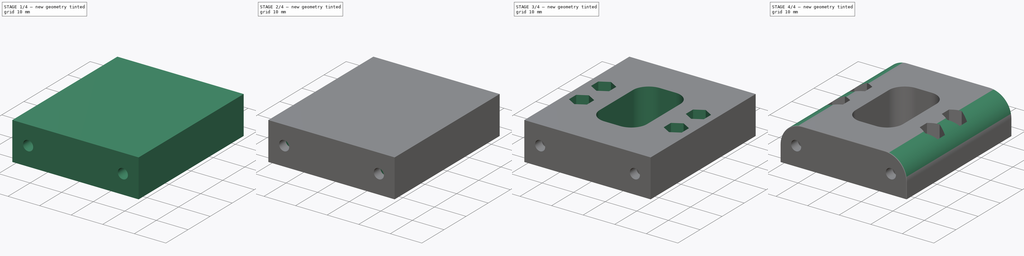
[diagram: build sequence overview — one tinted view per stage of 4, left to right]
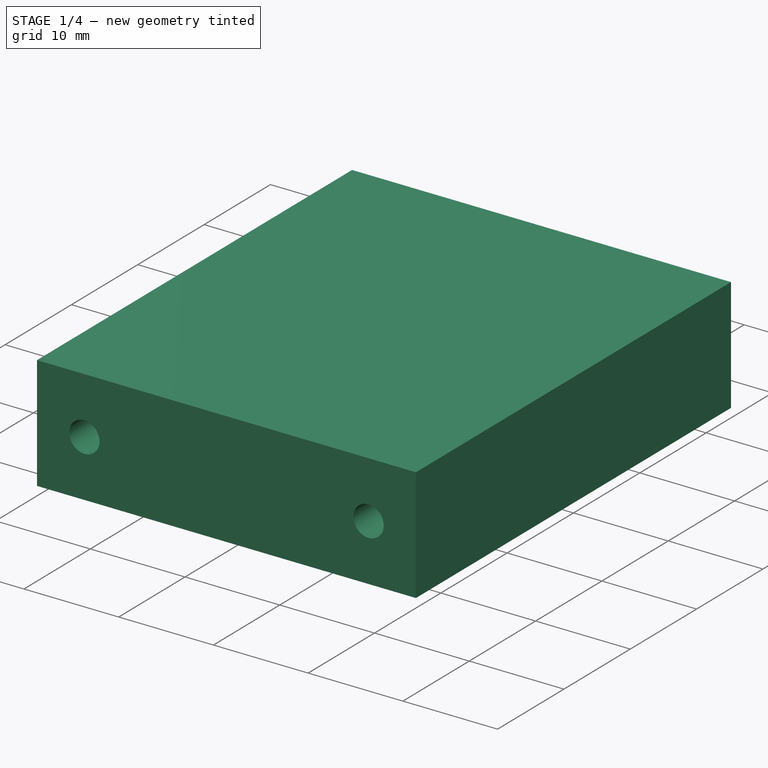
[diagram: stage 1 of 4 — iso view after this stage's code; geometry added in this stage tinted green]
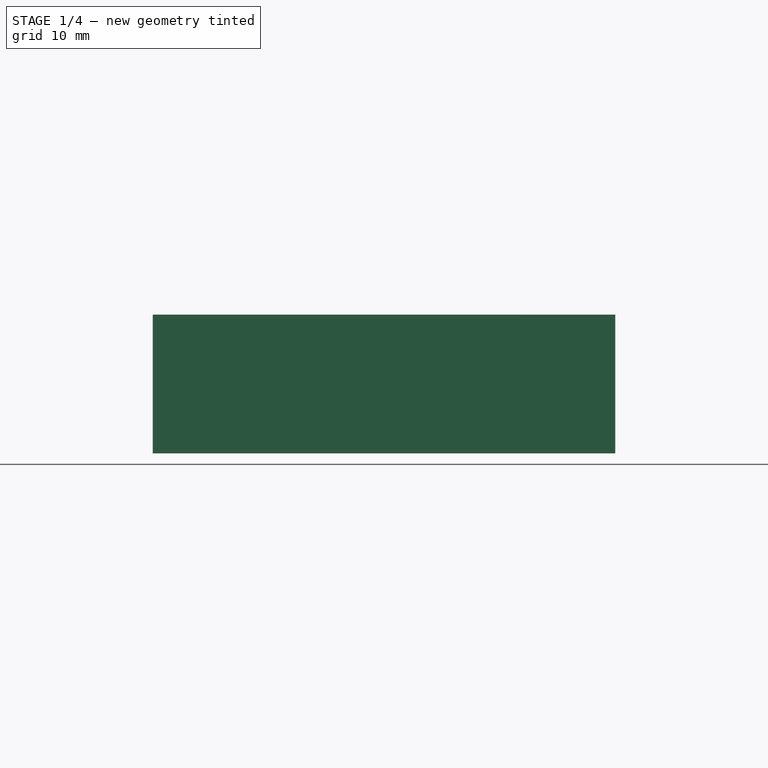
[diagram: stage 1 of 4 — front view after this stage's code; geometry added in this stage tinted green]
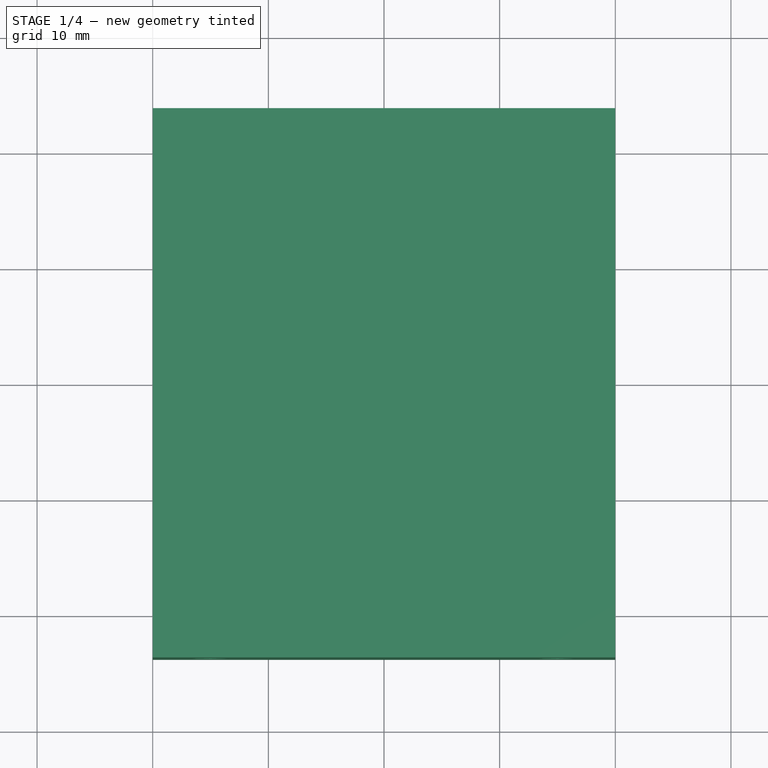
[diagram: stage 1 of 4 — top view after this stage's code; geometry added in this stage tinted green]
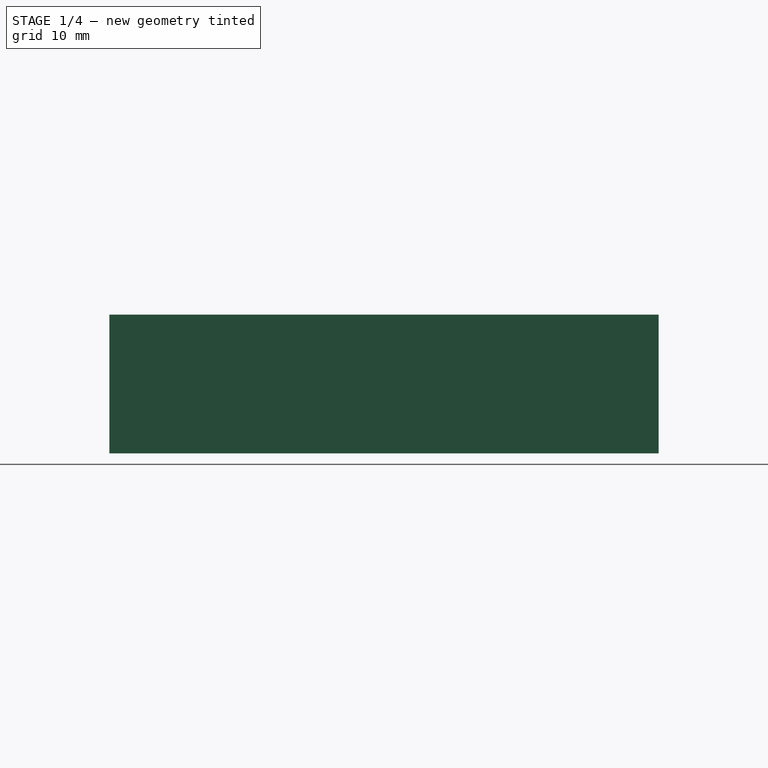
[diagram: stage 1 of 4 — right view after this stage's code; geometry added in this stage tinted green]
FCSTD DOCUMENT  (FreeCAD 0.18R4 (GitTag))
Label: Top_Shoulder
License: CreativeCommons Attribution-NonCommercial
LicenseURL: http://creativecommons.org/licenses/by-nc/4.0/
objects: Sketcher::SketchObject×8, PartDesign::Pocket×7, PartDesign::Pad×1, PartDesign::Fillet×1, PartDesign::Body×1
note: 26 computed .brp shape members not serialized (recipe doc carries the construction recipe); baked Part::Feature solids carry a one-line shape summary decoded from their .brp

FEATURE [Sketcher::SketchObject] Sketch
  MapMode = 5
  Support = -> [XY_Plane]
  sketch-geometry (4):
    g0: LineSegment StartX=-20 StartY=23.75 StartZ=0 EndX=20 EndY=23.75 EndZ=0
    g1: LineSegment StartX=20 StartY=23.75 StartZ=0 EndX=20 EndY=-23.75 EndZ=0
    g2: LineSegment StartX=20 StartY=-23.75 StartZ=0 EndX=-20 EndY=-23.75 EndZ=0
    g3: LineSegment StartX=-20 StartY=-23.75 StartZ=0 EndX=-20 EndY=23.75 EndZ=0
  constraints (10):
    c: Coincident(g0,g1)
    c: Coincident(g1,g2)
    c: Coincident(g2,g3)
    c: Coincident(g3,g0)
    c: Horizontal(g2)
    c: Vertical(g1)
    c: Symmetric(g0,g0,g-2)
    c: Symmetric(g0,g2,g-1)
    c: DistanceX(g0,g0) = 40
    c: DistanceY(g3,g3) = 47.5
FEATURE [PartDesign::Pad] Pad  label="Baseplate"
  Length = 12
  Length2 = 100
  Profile = -> Sketch
  Type = 0
FEATURE [Sketcher::SketchObject] Sketch001
  MapMode = 5
  Placement = pos=(0,-23.75,0) rot=(1,0,0;1.5708rad)
  Support = -> [Pad]
  sketch-geometry (2):
    g0: Circle CenterX=-15 CenterY=6 CenterZ=0 NormalX=0 NormalY=0 NormalZ=1 AngleXU=0 Radius=1.6
    g1: Circle CenterX=15 CenterY=6 CenterZ=0 NormalX=0 NormalY=0 NormalZ=1 AngleXU=0 Radius=1.6
  constraints (5):
    c: Symmetric(g0,g1,g-2)
    c: Equal(g0,g1)
    c: Radius(g1) = 1.6
    c: DistanceY(g-1,g0) = 6
    c: DistanceX(g0,g1) = 30
FEATURE [PartDesign::Pocket] Pocket  label="Screwholes Front"
  BaseFeature = -> Pad
  Length = 8
  Length2 = 100
  Profile = -> Sketch001
  Type = 0
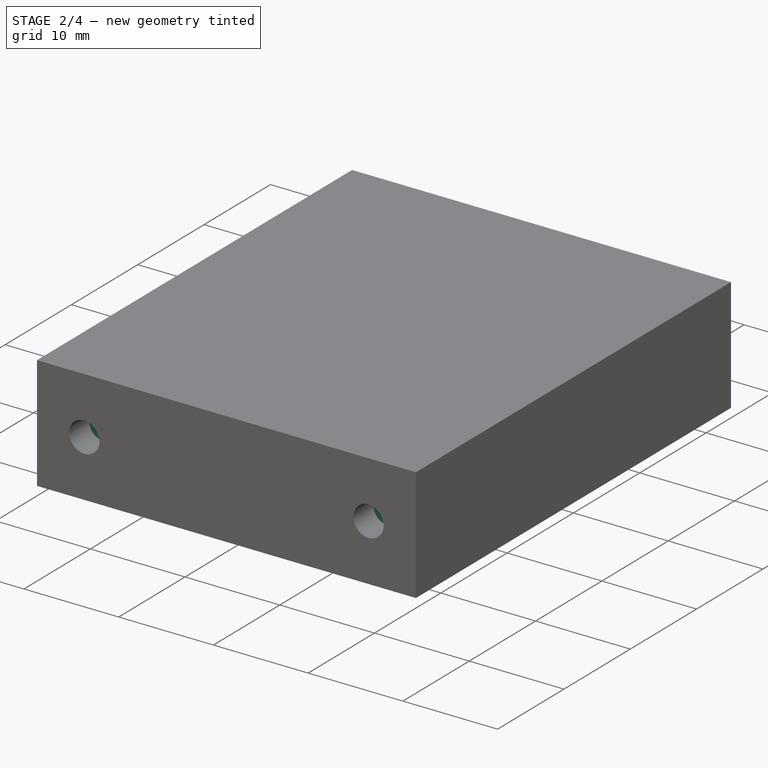
[diagram: stage 2 of 4 — iso view after this stage's code; geometry added in this stage tinted green]
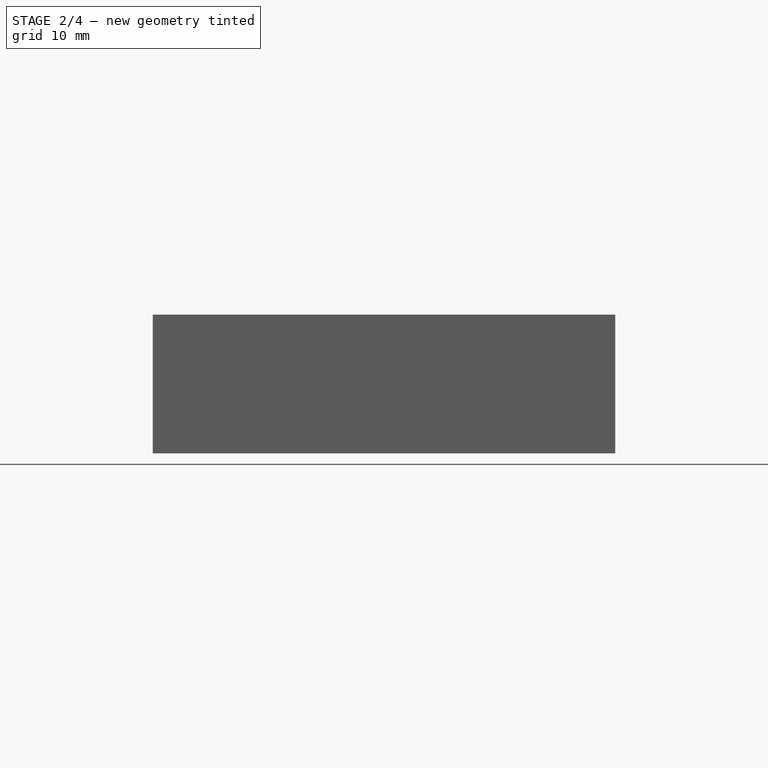
[diagram: stage 2 of 4 — front view after this stage's code; geometry added in this stage tinted green]
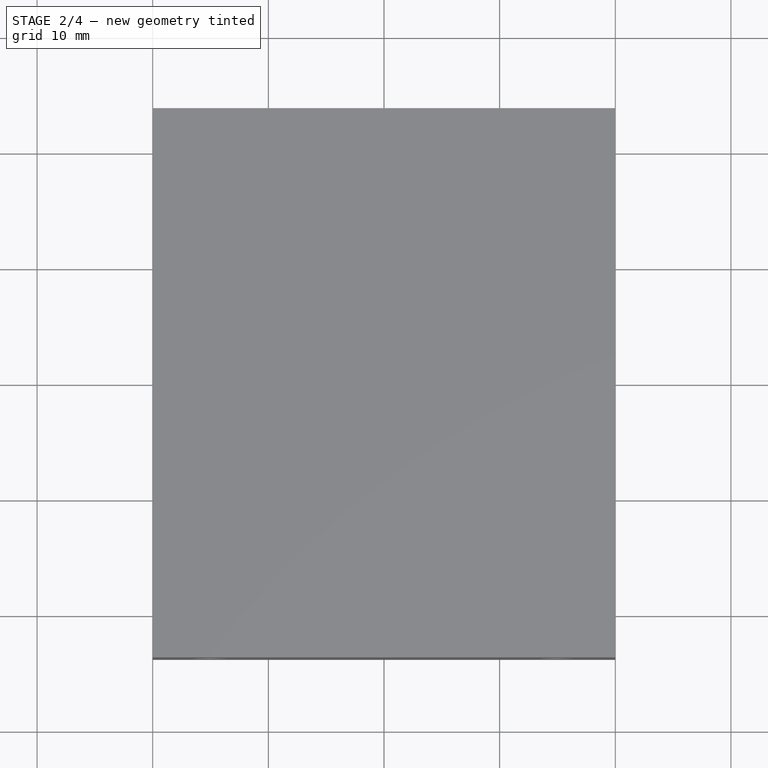
[diagram: stage 2 of 4 — top view after this stage's code; geometry added in this stage tinted green]
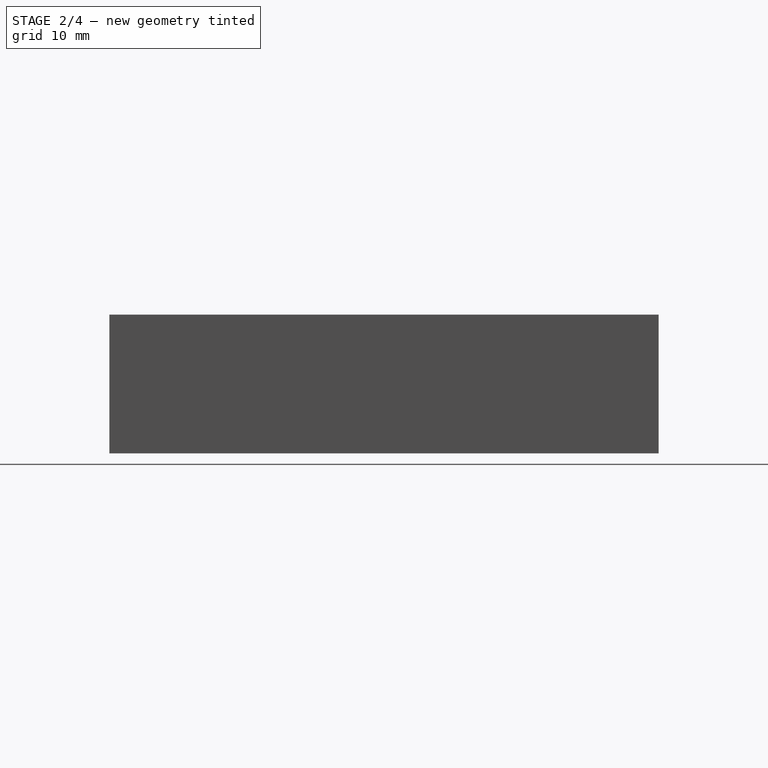
[diagram: stage 2 of 4 — right view after this stage's code; geometry added in this stage tinted green]
FEATURE [Sketcher::SketchObject] Sketch002
  MapMode = 5
  Placement = pos=(0,23.75,0) rot=(0,0.707107,0.707107;3.14159rad)
  Support = -> [Pocket]
  sketch-geometry (2):
    g0: Circle CenterX=-15 CenterY=6 CenterZ=0 NormalX=0 NormalY=0 NormalZ=1 AngleXU=0 Radius=1.6
    g1: Circle CenterX=15 CenterY=6 CenterZ=0 NormalX=0 NormalY=0 NormalZ=1 AngleXU=0 Radius=1.6
  constraints (5):
    c: Symmetric(g0,g1,g-2)
    c: Equal(g0,g1)
    c: Radius(g1) = 1.6
    c: DistanceY(g-1,g0) = 6
    c: DistanceX(g0,g1) = 30
FEATURE [PartDesign::Pocket] Pocket001  label="Screwholes Rear"
  BaseFeature = -> Pocket
  Length = 8
  Length2 = 100
  Profile = -> Sketch002
  Type = 0
FEATURE [Sketcher::SketchObject] Sketch003
  AttachmentOffset = pos=(0,0,-2.5) rot=(0,0,1;0rad)
  MapMode = 5
  Placement = pos=(0,0,9.5) rot=(0,0,1;0rad)
  Support = -> [Pocket001]
  sketch-geometry (16):
    g0: LineSegment StartX=-17.9 StartY=20.75 StartZ=0 EndX=-12.1 EndY=20.75 EndZ=0
    g1: LineSegment StartX=-12.1 StartY=20.75 StartZ=0 EndX=-12.1 EndY=17.75 EndZ=0
    g2: LineSegment StartX=-12.1 StartY=17.75 StartZ=0 EndX=-17.9 EndY=17.75 EndZ=0
    g3: LineSegment StartX=-17.9 StartY=17.75 StartZ=0 EndX=-17.9 EndY=20.75 EndZ=0
    g4: LineSegment StartX=12.1 StartY=20.75 StartZ=0 EndX=17.9 EndY=20.75 EndZ=0
    g5: LineSegment StartX=17.9 StartY=20.75 StartZ=0 EndX=17.9 EndY=17.75 EndZ=0
    g6: LineSegment StartX=17.9 StartY=17.75 StartZ=0 EndX=12.1 EndY=17.75 EndZ=0
    g7: LineSegment StartX=12.1 StartY=17.75 StartZ=0 EndX=12.1 EndY=20.75 EndZ=0
    g8: LineSegment StartX=-17.9 StartY=-17.75 StartZ=0 EndX=-12.1 EndY=-17.75 EndZ=0
    g9: LineSegment StartX=-12.1 StartY=-17.75 StartZ=0 EndX=-12.1 EndY=-20.75 EndZ=0
    g10: LineSegment StartX=-12.1 StartY=-20.75 StartZ=0 EndX=-17.9 EndY=-20.75 EndZ=0
    g11: LineSegment StartX=-17.9 StartY=-20.75 StartZ=0 EndX=-17.9 EndY=-17.75 EndZ=0
    g12: LineSegment StartX=12.1 StartY=-17.75 StartZ=0 EndX=17.9 EndY=-17.75 EndZ=0
    g13: LineSegment StartX=17.9 StartY=-17.75 StartZ=0 EndX=17.9 EndY=-20.75 EndZ=0
    g14: LineSegment StartX=17.9 StartY=-20.75 StartZ=0 EndX=12.1 EndY=-20.75 EndZ=0
    g15: LineSegment StartX=12.1 StartY=-20.75 StartZ=0 EndX=12.1 EndY=-17.75 EndZ=0
  constraints (45):
    c: Coincident(g0,g1)
    c: Coincident(g1,g2)
    c: Coincident(g2,g3)
    c: Coincident(g3,g0)
    c: Horizontal(g0)
    c: Horizontal(g2)
    c: Vertical(g1)
    c: Vertical(g3)
    c: Coincident(g4,g5)
    c: Coincident(g5,g6)
    c: Coincident(g6,g7)
    c: Coincident(g7,g4)
    c: Horizontal(g4)
    c: Horizontal(g6)
    c: Vertical(g5)
    c: Vertical(g7)
    c: Coincident(g8,g9)
    c: Coincident(g9,g10)
    c: Coincident(g10,g11)
    c: Coincident(g11,g8)
    c: Horizontal(g8)
    c: Horizontal(g10)
    c: Vertical(g9)
    c: Vertical(g11)
    c: Coincident(g12,g13)
    c: Coincident(g13,g14)
    c: Coincident(g14,g15)
    c: Coincident(g15,g12)
    c: Horizontal(g12)
    c: Horizontal(g14)
    c: Vertical(g13)
    c: Vertical(g15)
    c: Equal(g11,g13)
    c: Equal(g13,g5)
    c: Equal(g5,g3)
    c: Equal(g0,g4)
    c: Equal(g4,g10)
    c: Equal(g10,g14)
    c: DistanceX(g0,g0) = 5.8
    c: Symmetric(g0,g4,g-2)
    c: Symmetric(g9,g14,g-2)
    c: Symmetric(g12,g5,g-1)
    c: DistanceY(g10,g-1) = 20.75
    c: DistanceY(g11,g11) = 3
    c: DistanceX(g0,g4) = 24.2
FEATURE [PartDesign::Pocket] Pocket002  label="Nutholes Front and Rear"
  BaseFeature = -> Pocket001
  Length = 12
  Length2 = 100
  Profile = -> Sketch003
  Type = 0
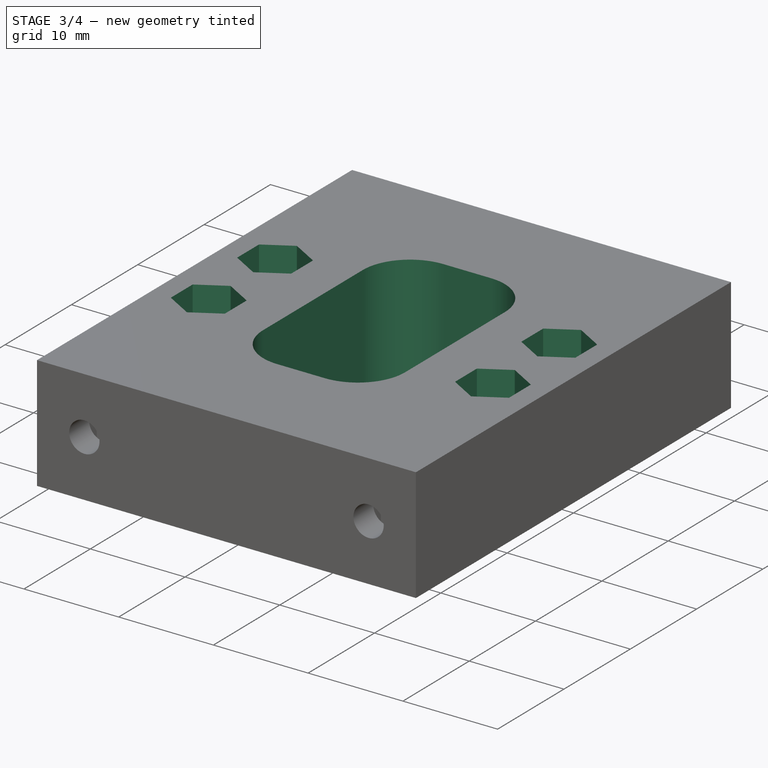
[diagram: stage 3 of 4 — iso view after this stage's code; geometry added in this stage tinted green]
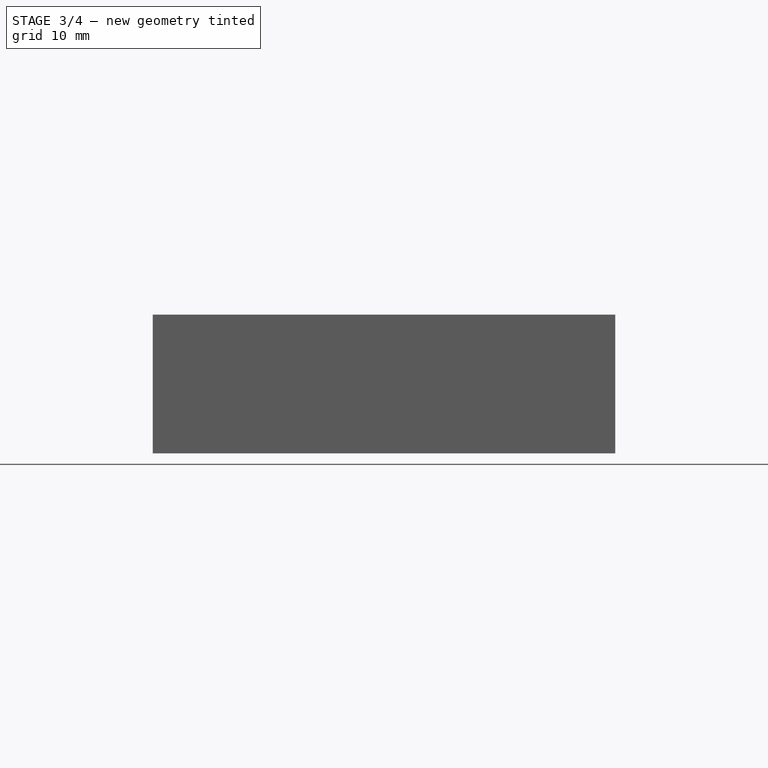
[diagram: stage 3 of 4 — front view after this stage's code; geometry added in this stage tinted green]
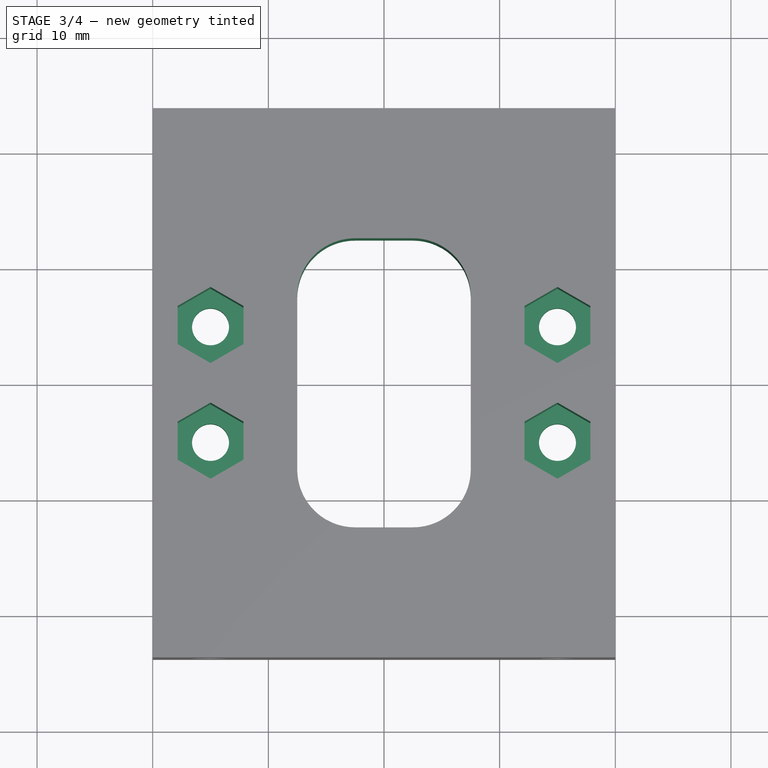
[diagram: stage 3 of 4 — top view after this stage's code; geometry added in this stage tinted green]
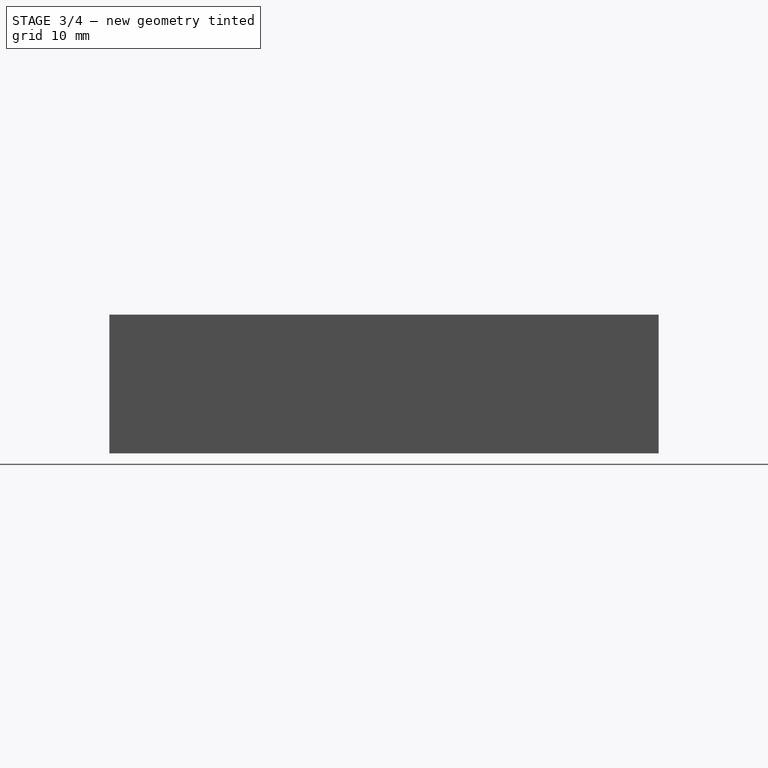
[diagram: stage 3 of 4 — right view after this stage's code; geometry added in this stage tinted green]
FEATURE [Sketcher::SketchObject] Sketch004
  MapMode = 5
  Placement = pos=(0,0,12) rot=(0,0,1;0rad)
  Support = -> [Pocket002]
  sketch-geometry (4):
    g0: Circle CenterX=-15 CenterY=5 CenterZ=0 NormalX=0 NormalY=0 NormalZ=1 AngleXU=0 Radius=1.6
    g1: Circle CenterX=15 CenterY=5 CenterZ=0 NormalX=0 NormalY=0 NormalZ=1 AngleXU=0 Radius=1.6
    g2: Circle CenterX=-15 CenterY=-5 CenterZ=0 NormalX=0 NormalY=0 NormalZ=1 AngleXU=0 Radius=1.6
    g3: Circle CenterX=15 CenterY=-5 CenterZ=0 NormalX=0 NormalY=0 NormalZ=1 AngleXU=0 Radius=1.6
  constraints (9):
    c: Equal(g0,g1)
    c: Equal(g1,g2)
    c: Equal(g2,g3)
    c: Symmetric(g3,g1,g-1)
    c: Symmetric(g0,g1,g-2)
    c: Symmetric(g2,g3,g-2)
    c: Radius(g1) = 1.6
    c: DistanceX(g0,g1) = 30
    c: DistanceY(g2,g0) = 10
FEATURE [PartDesign::Pocket] Pocket003  label="Screwholes Covers"
  BaseFeature = -> Pocket002
  Length = 12
  Length2 = 100
  Profile = -> Sketch004
  Type = 0
FEATURE [Sketcher::SketchObject] Sketch005
  ExternalGeometry = -> [Pocket003]
  MapMode = 5
  Placement = pos=(0,0,12) rot=(0,0,1;0rad)
  Support = -> [Pocket003]
  sketch-geometry (32):
    g0: LineSegment StartX=-15 StartY=8.2909 StartZ=0 EndX=-17.85 EndY=6.64545 EndZ=0
    g1: LineSegment StartX=-17.85 StartY=6.64545 StartZ=0 EndX=-17.85 EndY=3.35455 EndZ=0
    g2: LineSegment StartX=-17.85 StartY=3.35455 StartZ=0 EndX=-15 EndY=1.7091 EndZ=0
    g3: LineSegment StartX=-15 StartY=1.7091 StartZ=0 EndX=-12.15 EndY=3.35455 EndZ=0
    g4: LineSegment StartX=-12.15 StartY=3.35455 StartZ=0 EndX=-12.15 EndY=6.64545 EndZ=0
    g5: LineSegment StartX=-12.15 StartY=6.64545 StartZ=0 EndX=-15 EndY=8.2909 EndZ=0
    g6: Circle [constr] CenterX=-15 CenterY=5 CenterZ=0 NormalX=0 NormalY=0 NormalZ=1 AngleXU=0 Radius=3.2909
    g7: LineSegment StartX=15 StartY=8.2909 StartZ=0 EndX=12.15 EndY=6.64545 EndZ=0
    g8: LineSegment StartX=12.15 StartY=6.64545 StartZ=0 EndX=12.15 EndY=3.35455 EndZ=0
    g9: LineSegment StartX=12.15 StartY=3.35455 StartZ=0 EndX=15 EndY=1.7091 EndZ=0
    g10: LineSegment StartX=15 StartY=1.7091 StartZ=0 EndX=17.85 EndY=3.35455 EndZ=0
    g11: LineSegment StartX=17.85 StartY=3.35455 StartZ=0 EndX=17.85 EndY=6.64545 EndZ=0
    g12: LineSegment StartX=17.85 StartY=6.64545 StartZ=0 EndX=15 EndY=8.2909 EndZ=0
    g13: Circle [constr] CenterX=15 CenterY=5 CenterZ=0 NormalX=0 NormalY=0 NormalZ=1 AngleXU=0 Radius=3.2909
    g14: LineSegment StartX=-15 StartY=-1.7091 StartZ=0 EndX=-17.85 EndY=-3.35455 EndZ=0
    g15: LineSegment StartX=-17.85 StartY=-3.35455 StartZ=0 EndX=-17.85 EndY=-6.64545 EndZ=0
    g16: LineSegment StartX=-17.85 StartY=-6.64545 StartZ=0 EndX=-15 EndY=-8.2909 EndZ=0
    g17: LineSegment StartX=-15 StartY=-8.2909 StartZ=0 EndX=-12.15 EndY=-6.64545 EndZ=0
    g18: LineSegment StartX=-12.15 StartY=-6.64545 StartZ=0 EndX=-12.15 EndY=-3.35455 EndZ=0
    g19: LineSegment StartX=-12.15 StartY=-3.35455 StartZ=0 EndX=-15 EndY=-1.7091 EndZ=0
    g20: Circle [constr] CenterX=-15 CenterY=-5 CenterZ=0 NormalX=0 NormalY=0 NormalZ=1 AngleXU=0 Radius=3.2909
    g21: LineSegment StartX=15 StartY=-1.7091 StartZ=0 EndX=12.15 EndY=-3.35455 EndZ=0
    g22: LineSegment StartX=12.15 StartY=-3.35455 StartZ=0 EndX=12.15 EndY=-6.64545 EndZ=0
    g23: LineSegment StartX=12.15 StartY=-6.64545 StartZ=0 EndX=15 EndY=-8.2909 EndZ=0
    g24: LineSegment StartX=15 StartY=-8.2909 StartZ=0 EndX=17.85 EndY=-6.64545 EndZ=0
    g25: LineSegment StartX=17.85 StartY=-6.64545 StartZ=0 EndX=17.85 EndY=-3.35455 EndZ=0
    g26: LineSegment StartX=17.85 StartY=-3.35455 StartZ=0 EndX=15 EndY=-1.7091 EndZ=0
    g27: Circle [constr] CenterX=15 CenterY=-5 CenterZ=0 NormalX=0 NormalY=0 NormalZ=1 AngleXU=0 Radius=3.2909
    g28: LineSegment [constr] StartX=-15 StartY=5 StartZ=0 EndX=15 EndY=5 EndZ=0
    g29: LineSegment [constr] StartX=15 StartY=5 StartZ=0 EndX=15 EndY=-5 EndZ=0
    g30: LineSegment [constr] StartX=15 StartY=-5 StartZ=0 EndX=-15 EndY=-5 EndZ=0
    g31: LineSegment [constr] StartX=-15 StartY=-5 StartZ=0 EndX=-15 EndY=5 EndZ=0
  constraints (74):
    c: Coincident(g0,g1)
    c: Coincident(g1,g2)
    c: Coincident(g2,g3)
    c: Coincident(g3,g4)
    c: Coincident(g4,g5)
    c: Coincident(g5,g0)
    c: Equal(g0, g1-g5) x5
    c: PointOnObject(g0,g6)
    c: PointOnObject(g1,g6)
    c: PointOnObject(g2,g6)
    c: PointOnObject(g3,g6)
    c: PointOnObject(g4,g6)
    c: PointOnObject(g5,g6)
    c: Coincident(g7,g8)
    c: Coincident(g8,g9)
    c: Coincident(g9,g10)
    c: Coincident(g10,g11)
    c: Coincident(g11,g12)
    c: Coincident(g12,g7)
    c: Equal(g7, g8-g12) x5
    c: PointOnObject(g7,g13)
    c: PointOnObject(g8,g13)
    c: PointOnObject(g9,g13)
    c: PointOnObject(g10,g13)
    c: PointOnObject(g11,g13)
    c: PointOnObject(g12,g13)
    c: Coincident(g14,g15)
    c: Coincident(g15,g16)
    c: Coincident(g16,g17)
    c: Coincident(g17,g18)
    c: Coincident(g18,g19)
    c: Coincident(g19,g14)
    c: Equal(g14, g15-g19) x5
    c: PointOnObject(g14,g20)
    c: PointOnObject(g15,g20)
    c: PointOnObject(g16,g20)
    c: PointOnObject(g17,g20)
    c: PointOnObject(g18,g20)
    c: PointOnObject(g19,g20)
    c: Coincident(g21,g22)
    c: Coincident(g22,g23)
    c: Coincident(g23,g24)
    c: Coincident(g24,g25)
    c: Coincident(g25,g26)
    c: Coincident(g26,g21)
    c: Equal(g21, g22-g26) x5
    c: PointOnObject(g21,g27)
    c: PointOnObject(g22,g27)
    c: PointOnObject(g23,g27)
    c: PointOnObject(g24,g27)
    c: PointOnObject(g25,g27)
    c: PointOnObject(g26,g27)
    c: Equal(g6,g20)
    c: Equal(g20,g13)
    c: Equal(g13,g27)
    c: Vertical(g1)
    c: Vertical(g15)
    c: Vertical(g8)
    c: Vertical(g22)
    c: Distance(g4,g0) = 5.7
    c: Coincident(g28,g29)
    c: Coincident(g29,g30)
    c: Coincident(g30,g31)
    c: Coincident(g31,g28)
    c: Horizontal(g30)
    c: Vertical(g29)
    c: Coincident(g28,g6)
    c: Coincident(g29,g27)
    c: Coincident(g13,g28)
    c: Coincident(g20,g30)
    c: Symmetric(g6,g20,g-1)
    c: Symmetric(g6,g13,g-2)
    c: DistanceX(g28,g28) = 30
    c: DistanceY(g31,g31) = 10
FEATURE [PartDesign::Pocket] Pocket004  label="Nutholes Covers"
  BaseFeature = -> Pocket003
  Length = 9
  Length2 = 100
  Profile = -> Sketch005
  Type = 0
FEATURE [Sketcher::SketchObject] Sketch006
  MapMode = 5
  Placement = pos=(0,0,12) rot=(0,0,1;0rad)
  sketch-geometry (8):
    g0: LineSegment StartX=-2.5 StartY=12.5 StartZ=0 EndX=2.5 EndY=12.5 EndZ=0
    g1: LineSegment StartX=7.5 StartY=7.5 StartZ=0 EndX=7.5 EndY=-7.5 EndZ=0
    g2: LineSegment StartX=2.5 StartY=-12.5 StartZ=0 EndX=-2.5 EndY=-12.5 EndZ=0
    g3: LineSegment StartX=-7.5 StartY=-7.5 StartZ=0 EndX=-7.5 EndY=7.5 EndZ=0
    g4: ArcOfCircle CenterX=-2.5 CenterY=7.5 CenterZ=0 NormalX=0 NormalY=0 NormalZ=1 AngleXU=0 Radius=5 StartAngle=1.5708 EndAngle=3.14159
    g5: ArcOfCircle CenterX=2.5 CenterY=7.5 CenterZ=0 NormalX=0 NormalY=0 NormalZ=1 AngleXU=0 Radius=5 StartAngle=1e-16 EndAngle=1.5708
    g6: ArcOfCircle CenterX=2.5 CenterY=-7.5 CenterZ=0 NormalX=0 NormalY=0 NormalZ=1 AngleXU=0 Radius=5 StartAngle=4.71239 EndAngle=6.28319
    g7: ArcOfCircle CenterX=-2.5 CenterY=-7.5 CenterZ=0 NormalX=0 NormalY=0 NormalZ=1 AngleXU=0 Radius=5 StartAngle=3.14159 EndAngle=4.71239
  constraints (18):
    c: Horizontal(g2)
    c: Vertical(g3)
    c: Tangent(g3,g4) = 1.5708
    c: Tangent(g0,g4) = 1.5708
    c: Tangent(g0,g5) = 1.5708
    c: Tangent(g1,g5) = 1.5708
    c: Tangent(g1,g6) = 1.5708
    c: Tangent(g2,g6) = 1.5708
    c: Tangent(g2,g7) = 1.5708
    c: Tangent(g3,g7) = 1.5708
    c: Equal(g5,g6)
    c: Equal(g6,g4)
    c: Equal(g4,g7)
    c: Symmetric(g1,g3,g-2)
    c: Symmetric(g0,g2,g-1)
    c: DistanceY(g2,g0) = 25
    c: DistanceX(g3,g1) = 15
    c: Radius(g7) = 5
FEATURE [PartDesign::Pocket] Pocket005  label="Access Hole"
  BaseFeature = -> Pocket004
  Length = 12
  Length2 = 100
  Profile = -> Sketch006
  Type = 0
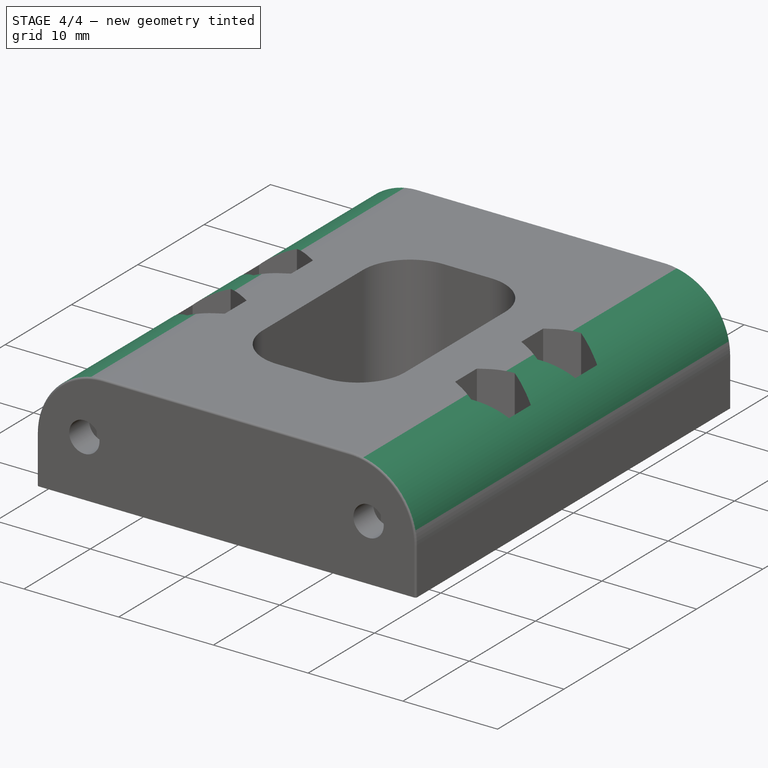
[diagram: stage 4 of 4 — iso view after this stage's code; geometry added in this stage tinted green]
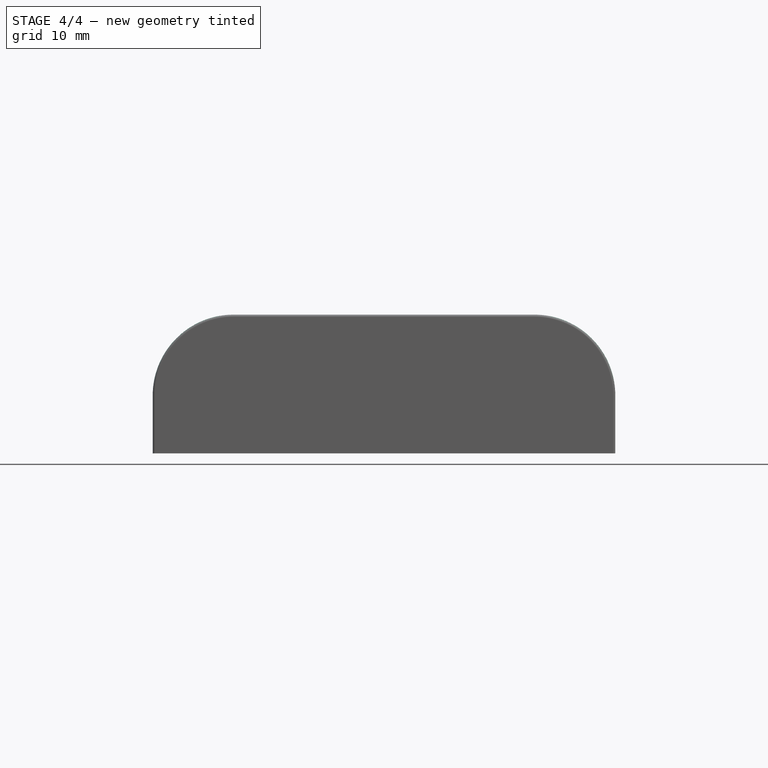
[diagram: stage 4 of 4 — front view after this stage's code; geometry added in this stage tinted green]
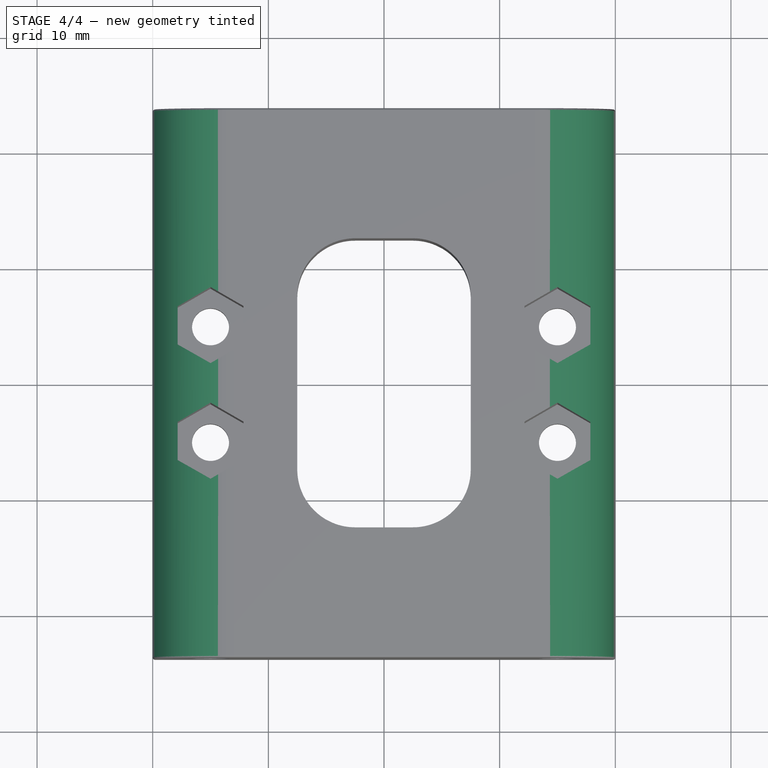
[diagram: stage 4 of 4 — top view after this stage's code; geometry added in this stage tinted green]
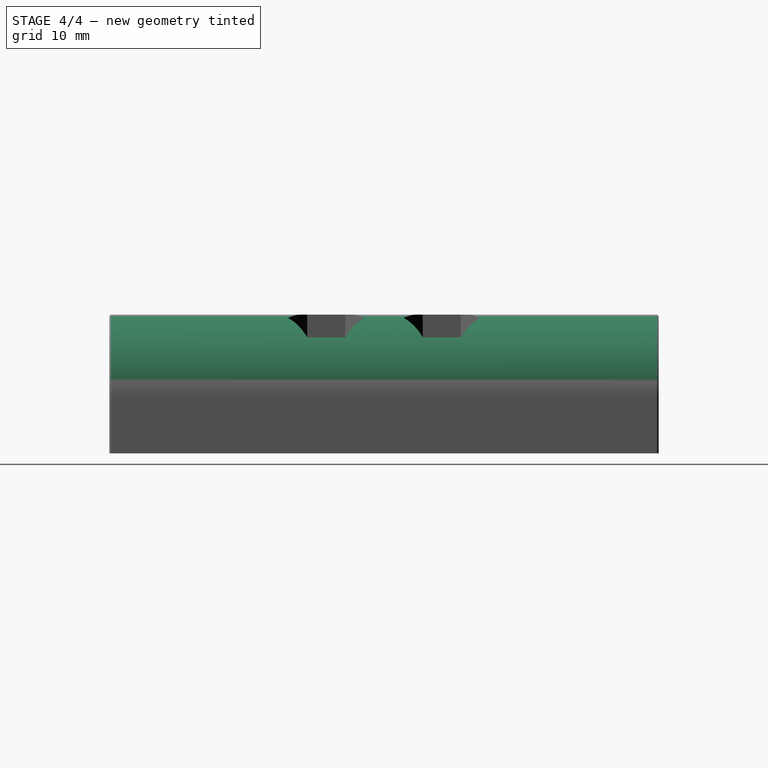
[diagram: stage 4 of 4 — right view after this stage's code; geometry added in this stage tinted green]
FEATURE [Sketcher::SketchObject] Sketch009
  MapMode = 5
  Placement = pos=(0,-23.75,0) rot=(1,0,0;1.5708rad)
  Support = -> [Pocket005]
  sketch-geometry (6):
    g0: ArcOfCircle CenterX=-13 CenterY=5 CenterZ=0 NormalX=0 NormalY=0 NormalZ=1 AngleXU=0 Radius=7 StartAngle=1.5708 EndAngle=3.14159
    g1: ArcOfCircle CenterX=13 CenterY=5 CenterZ=0 NormalX=0 NormalY=0 NormalZ=1 AngleXU=0 Radius=7 StartAngle=0 EndAngle=1.5708
    g2: LineSegment StartX=-20 StartY=5 StartZ=0 EndX=-20 EndY=13 EndZ=0
    g3: LineSegment StartX=-20 StartY=13 StartZ=0 EndX=20 EndY=13 EndZ=0
    g4: LineSegment StartX=20 StartY=13 StartZ=0 EndX=20 EndY=5 EndZ=0
    g5: LineSegment StartX=13 StartY=12 StartZ=0 EndX=-13 EndY=12 EndZ=0
  constraints (19):
    c: Coincident(g0,g2)
    c: Coincident(g2,g3)
    c: Horizontal(g3)
    c: Coincident(g3,g4)
    c: Vertical(g4)
    c: Horizontal(g5)
    c: Coincident(g0,g5)
    c: Coincident(g1,g5)
    c: Coincident(g4,g1)
    c: Horizontal(g1,g1)
    c: Horizontal(g0,g0)
    c: Vertical(g0,g0)
    c: Vertical(g1,g1)
    c: Symmetric(g0,g1,g-2)
    c: Radius(g1) = 7
    c: Vertical(g2)
    c: DistanceY(g0,g2) = 1
    c: DistanceY(g-1,g0) = 12
    c: DistanceX(g0,g1) = 40
FEATURE [PartDesign::Pocket] Pocket006  label="Rounding Top"
  BaseFeature = -> Pocket005
  Length = 50
  Length2 = 100
  Profile = -> Sketch009
  Type = 0
FEATURE [PartDesign::Fillet] Fillet
  Base = -> Pocket006 [Edge40,Edge92,Edge2,Edge6]
  BaseFeature = -> Pocket006
  Radius = 0.2
FEATURE [PartDesign::Body] Body  label="Top_Shoulder"
  Group = -> [Sketch,Pad,Sketch001,Pocket,Sketch002,Pocket001,Sketch003,Pocket002,Sketch004,Pocket003,Sketch005,Pocket004,Sketch006,Pocket005,Sketch009,Pocket006,Fillet]
  Origin = -> Origin
  Tip = -> Fillet
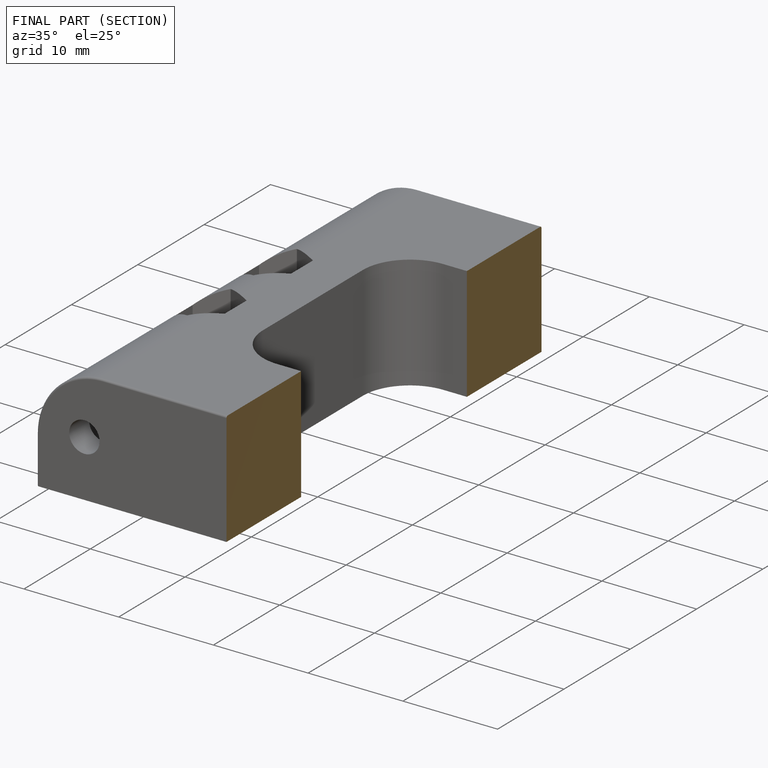
[diagram: finished part — half-section view (interior)]
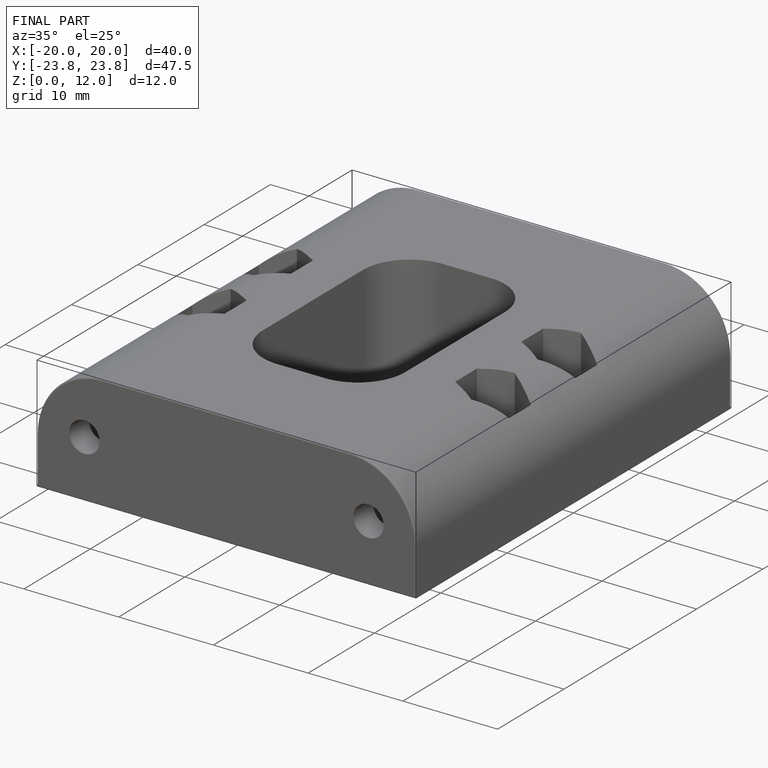
[diagram: finished part — iso view with bounding-box wireframe]
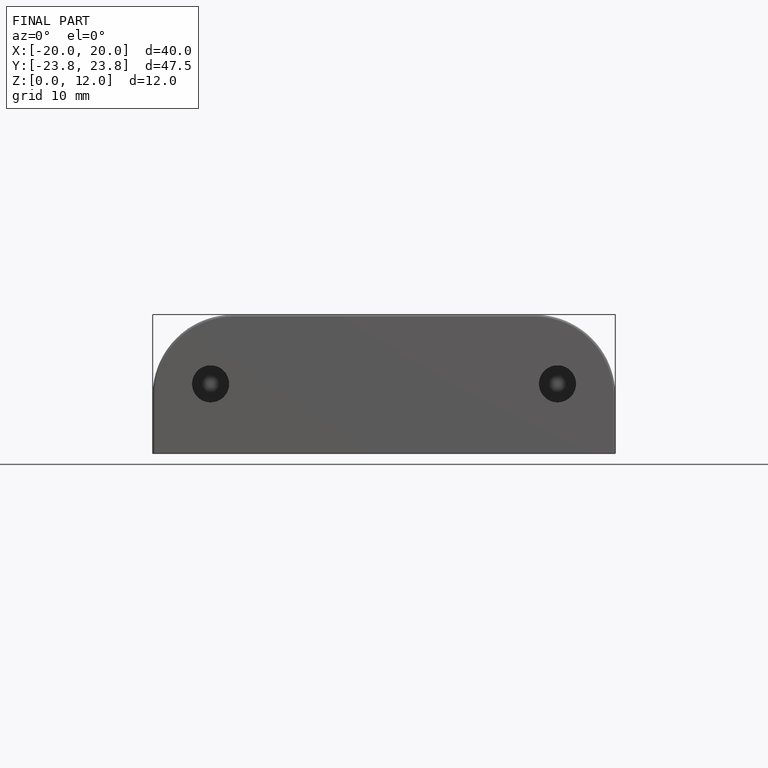
[diagram: finished part — front view with bounding-box wireframe]
